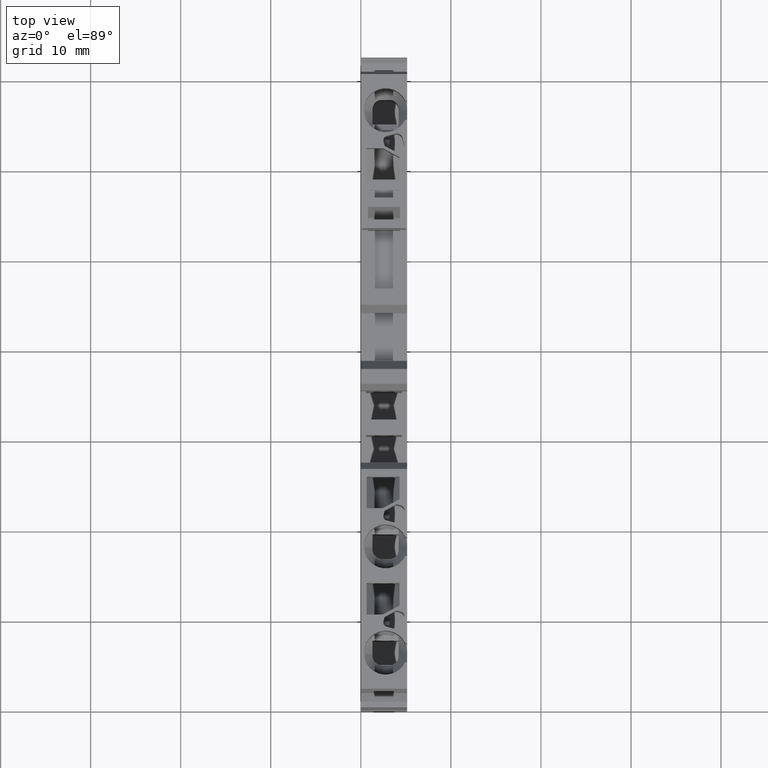
[diagram: clean part render]
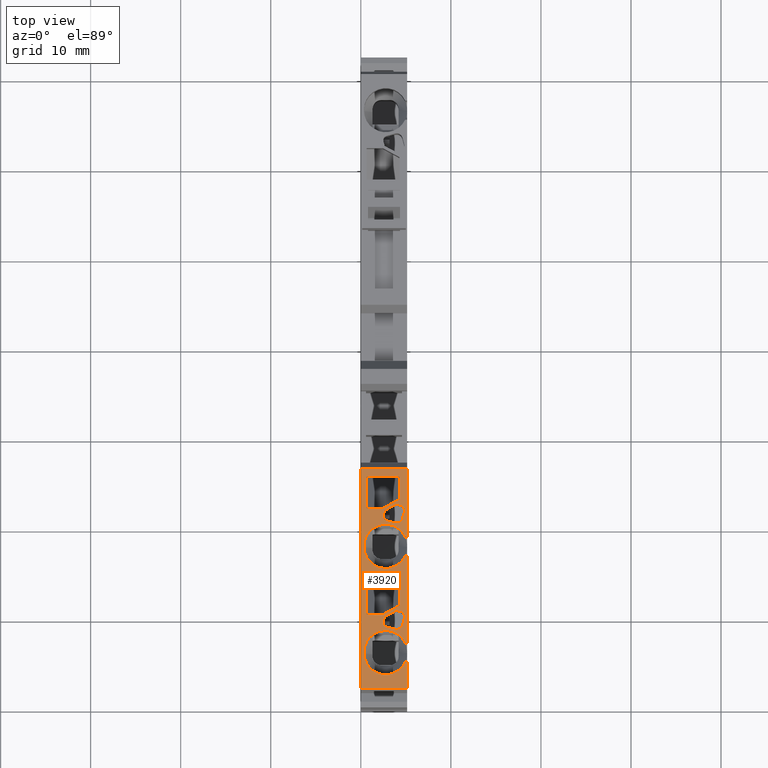
[diagram: same view with one face highlighted and labeled with its STEP entity id]
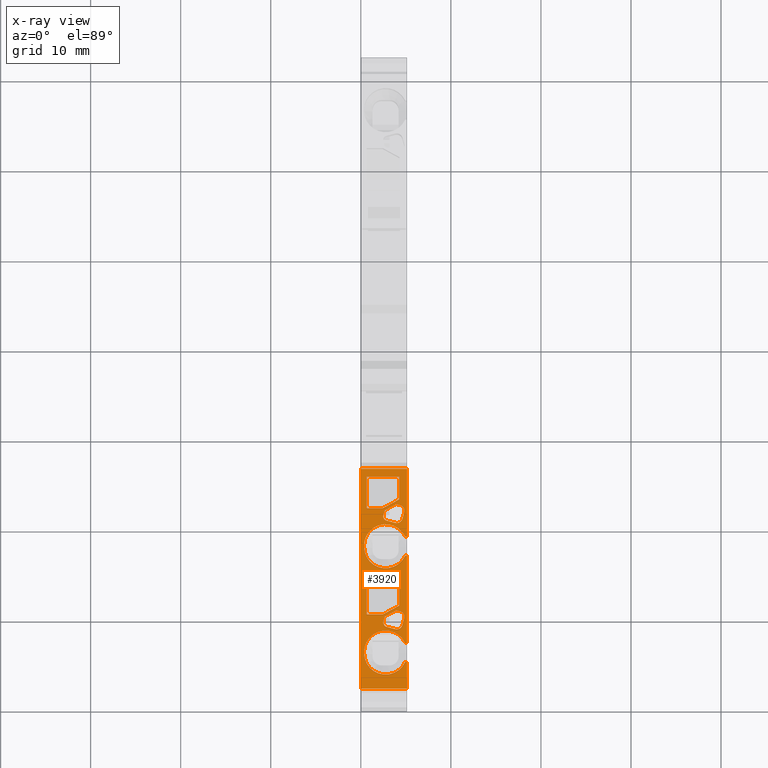
[diagram: x-ray of the same camera — body ghosted, the highlighted face saturated]
A machine part, top view. The second image highlights one B-rep face of the part: STEP entity #3920.
The next image is the same camera in x-ray: the body ghosted, the highlighted face saturated — about 0% of this face is hidden behind the body in this view.
In plain terms, the highlighted planar face has unit normal (-0, -0, 1).
Its self-contained STEP definition (entity closure, byte-faithful):
#60=CARTESIAN_POINT('',(-11.0462532908044,-9.15000000000289,53.67));
#70=DIRECTION('',(0.47559235530198,-5.99728600114702E-14,
0.879665795389542));
#80=VECTOR('',#70,1.);
#90=LINE('',#60,#80);
#100=CARTESIAN_POINT('',(-12.3994803998297,-9.15000000000271,
51.1670421876364));
#110=VERTEX_POINT('',#100);
#120=CARTESIAN_POINT('',(-11.7027836946682,-9.15000000000279,
52.4556673189256));
#130=VERTEX_POINT('',#120);
#140=EDGE_CURVE('',#110,#130,#90,.T.);
#480=CARTESIAN_POINT('',(-7.80010077832437,-9.15000000000329,
51.8563969999973));
#490=DIRECTION('',(1.2610745780961E-13,1.,-0.));
#500=DIRECTION('',(-1.,1.2610745780961E-13,0.));
#510=AXIS2_PLACEMENT_3D('',#480,#490,#500);
#520=PLANE('',#510);
#530=CARTESIAN_POINT('',(0.753746709195646,-9.15000000000438,53.67));
#540=DIRECTION('',(0.47559235530198,-5.99728600114702E-14,
0.879665795389542));
#550=VECTOR('',#540,1.);
#560=LINE('',#530,#550);
#570=CARTESIAN_POINT('',(-0.599480399829737,-9.1500000000042,
51.1670421876364));
#580=VERTEX_POINT('',#570);
#590=CARTESIAN_POINT('',(0.097216305331763,-9.15000000000428,
52.4556673189256));
#600=VERTEX_POINT('',#590);
#610=EDGE_CURVE('',#580,#600,#560,.T.);
#620=ORIENTED_EDGE('',*,*,#610,.T.);
#630=CARTESIAN_POINT('',(-30.6958559619297,-9.15000000000041,
43.1027426606679));
#640=DIRECTION('',(0.965925826289069,-1.21805343589187E-13,
0.258819045102521));
#650=VECTOR('',#640,1.);
#660=LINE('',#630,#650);
#670=CARTESIAN_POINT('',(-1.12448227247336,-9.15000000000413,
51.0263683598367));
#680=VERTEX_POINT('',#670);
#690=EDGE_CURVE('',#680,#580,#660,.T.);
#700=ORIENTED_EDGE('',*,*,#690,.T.);
#710=CARTESIAN_POINT('',(-1.25389179502463,-9.15000000000412,
51.5093312729812));
#720=DIRECTION('',(-1.2610745780961E-13,-1.,0.));
#730=DIRECTION('',(1.,-1.2610745780961E-13,0.));
#740=AXIS2_PLACEMENT_3D('',#710,#720,#730);
#750=CIRCLE('',#740,0.5);
#760=CARTESIAN_POINT('',(-1.73685470816915,-9.15000000000406,
51.37992175043));
#770=VERTEX_POINT('',#760);
#780=EDGE_CURVE('',#770,#680,#750,.T.);
#790=ORIENTED_EDGE('',*,*,#780,.T.);
#800=CARTESIAN_POINT('',(-2.35047932574552,-9.15000000000399,53.67));
#810=DIRECTION('',(0.25881904510252,-3.26266791361718E-14,
-0.965925826289069));
#820=VECTOR('',#810,1.);
#830=LINE('',#800,#820);
#840=CARTESIAN_POINT('',(-1.99049737236962,-9.15000000000402,
52.3265290601933));
#850=VERTEX_POINT('',#840);
#860=EDGE_CURVE('',#850,#770,#830,.T.);
#870=ORIENTED_EDGE('',*,*,#860,.T.);
#880=CARTESIAN_POINT('',(-1.34332706875595,-9.15000000000411,
52.499937820412));
#890=DIRECTION('',(1.2610745780961E-13,1.,0.));
#900=DIRECTION('',(1.,-1.2610745780961E-13,0.));
#910=AXIS2_PLACEMENT_3D('',#880,#890,#900);
#920=CIRCLE('',#910,0.67);
#930=CARTESIAN_POINT('',(-1.51673582897462,-9.15000000000408,
53.1471081240256));
#940=VERTEX_POINT('',#930);
#950=EDGE_CURVE('',#850,#940,#920,.T.);
#960=ORIENTED_EDGE('',*,*,#950,.F.);
#970=CARTESIAN_POINT('',(-30.6958559619297,-9.15000000000041,
45.3285864485496));
#980=DIRECTION('',(-0.965925826289069,1.21805343589187E-13,
-0.258819045102521));
#990=VECTOR('',#980,1.);
#1000=LINE('',#970,#990);
#1010=CARTESIAN_POINT('',(-0.763313684469182,-9.15000000000418,
53.3489869792056));
#1020=VERTEX_POINT('',#1010);
#1030=EDGE_CURVE('',#1020,#940,#1000,.T.);
#1040=ORIENTED_EDGE('',*,*,#1030,.T.);
#1050=CARTESIAN_POINT('',(-0.608022257407654,-9.15000000000421,
52.7694314834322));
#1060=DIRECTION('',(-1.2610745780961E-13,-1.,0.));
#1070=DIRECTION('',(1.,-1.2610745780961E-13,0.));
#1080=AXIS2_PLACEMENT_3D('',#1050,#1060,#1070);
#1090=CIRCLE('',#1080,0.6);
#1100=CARTESIAN_POINT('',(-0.0284667616341991,-9.15000000000427,
52.9247229104937));
#1110=VERTEX_POINT('',#1100);
#1120=EDGE_CURVE('',#1110,#1020,#1090,.T.);
#1130=ORIENTED_EDGE('',*,*,#1120,.T.);
#1140=CARTESIAN_POINT('',(-0.228163155904838,-9.15000000000426,53.67));
#1150=DIRECTION('',(-0.25881904510252,3.26197402422679E-14,
0.965925826289069));
#1160=VECTOR('',#1150,1.);
#1170=LINE('',#1140,#1160);
#1180=EDGE_CURVE('',#600,#1110,#1170,.T.);
#1190=ORIENTED_EDGE('',*,*,#1180,.T.);
#1200=EDGE_LOOP('',(#1190,#1130,#1040,#960,#870,#790,#700,#620));
#1210=FACE_BOUND('',#1200,.T.);
#1220=CARTESIAN_POINT('',(-13.0538917950246,-9.15000000000263,
51.5093312729812));
#1230=DIRECTION('',(-1.2610745780961E-13,-1.,0.));
#1240=DIRECTION('',(1.,-1.2610745780961E-13,0.));
#1250=AXIS2_PLACEMENT_3D('',#1220,#1230,#1240);
#1260=CIRCLE('',#1250,0.5);
#1270=CARTESIAN_POINT('',(-13.5368547081692,-9.15000000000257,
51.37992175043));
#1280=VERTEX_POINT('',#1270);
#1290=CARTESIAN_POINT('',(-12.9244822724734,-9.15000000000264,
51.0263683598367));
#1300=VERTEX_POINT('',#1290);
#1310=EDGE_CURVE('',#1280,#1300,#1260,.T.);
#1320=ORIENTED_EDGE('',*,*,#1310,.T.);
#1330=CARTESIAN_POINT('',(-14.1504793257455,-9.1500000000025,53.67));
#1340=DIRECTION('',(0.25881904510252,-3.26266791361718E-14,
-0.965925826289069));
#1350=VECTOR('',#1340,1.);
#1360=LINE('',#1330,#1350);
#1370=CARTESIAN_POINT('',(-13.7904973723696,-9.15000000000254,
52.3265290601933));
#1380=VERTEX_POINT('',#1370);
#1390=EDGE_CURVE('',#1380,#1280,#1360,.T.);
#1400=ORIENTED_EDGE('',*,*,#1390,.T.);
#1410=CARTESIAN_POINT('',(-13.1433270687559,-9.15000000000263,
52.499937820412));
#1420=DIRECTION('',(1.2610745780961E-13,1.,0.));
#1430=DIRECTION('',(1.,-1.2610745780961E-13,0.));
#1440=AXIS2_PLACEMENT_3D('',#1410,#1420,#1430);
#1450=CIRCLE('',#1440,0.67);
#1460=CARTESIAN_POINT('',(-13.3167358289746,-9.1500000000026,
53.1471081240256));
#1470=VERTEX_POINT('',#1460);
#1480=EDGE_CURVE('',#1380,#1470,#1450,.T.);
#1490=ORIENTED_EDGE('',*,*,#1480,.F.);
#1500=CARTESIAN_POINT('',(-30.6958559619297,-9.15000000000041,
48.4903869192369));
#1510=DIRECTION('',(-0.965925826289069,1.21805343589187E-13,
-0.258819045102521));
#1520=VECTOR('',#1510,1.);
#1530=LINE('',#1500,#1520);
#1540=CARTESIAN_POINT('',(-12.5633136844692,-9.15000000000269,
53.3489869792056));
#1550=VERTEX_POINT('',#1540);
#1560=EDGE_CURVE('',#1550,#1470,#1530,.T.);
#1570=ORIENTED_EDGE('',*,*,#1560,.T.);
#1580=CARTESIAN_POINT('',(-12.4080222574077,-9.15000000000272,
52.7694314834322));
#1590=DIRECTION('',(-1.2610745780961E-13,-1.,0.));
#1600=DIRECTION('',(1.,-1.2610745780961E-13,0.));
#1610=AXIS2_PLACEMENT_3D('',#1580,#1590,#1600);
#1620=CIRCLE('',#1610,0.6);
#1630=CARTESIAN_POINT('',(-11.8284667616342,-9.15000000000278,
52.9247229104937));
#1640=VERTEX_POINT('',#1630);
#1650=EDGE_CURVE('',#1640,#1550,#1620,.T.);
#1660=ORIENTED_EDGE('',*,*,#1650,.T.);
#1670=CARTESIAN_POINT('',(-12.0281631559048,-9.15000000000277,53.67));
#1680=DIRECTION('',(-0.25881904510252,3.26197402422679E-14,
0.965925826289069));
#1690=VECTOR('',#1680,1.);
#1700=LINE('',#1670,#1690);
#1710=EDGE_CURVE('',#130,#1640,#1700,.T.);
#1720=ORIENTED_EDGE('',*,*,#1710,.T.);
#1730=ORIENTED_EDGE('',*,*,#140,.T.);
#1740=CARTESIAN_POINT('',(-30.6958559619297,-9.15000000000041,
46.2645431313552));
#1750=DIRECTION('',(0.965925826289069,-1.21805343589187E-13,
0.258819045102521));
#1760=VECTOR('',#1750,1.);
#1770=LINE('',#1740,#1760);
#1780=EDGE_CURVE('',#1300,#110,#1770,.T.);
#1790=ORIENTED_EDGE('',*,*,#1780,.T.);
#1800=EDGE_LOOP('',(#1790,#1730,#1720,#1660,#1570,#1490,#1400,#1320));
#1810=FACE_BOUND('',#1800,.T.);
#1820=CARTESIAN_POINT('',(3.13216722169037,-9.15000000000467,53.67));
#1830=DIRECTION('',(8.61899005766604E-17,-1.0862244886344E-29,-1.));
#1840=VECTOR('',#1830,1.);
#1850=LINE('',#1820,#1840);
#1860=CARTESIAN_POINT('',(3.13216722169037,-9.15000000000467,
52.819999999999));
#1870=VERTEX_POINT('',#1860);
#1880=CARTESIAN_POINT('',(3.13216722169037,-9.15000000000467,
49.1699999999993));
#1890=VERTEX_POINT('',#1880);
#1900=EDGE_CURVE('',#1870,#1890,#1850,.T.);
#1910=ORIENTED_EDGE('',*,*,#1900,.F.);
#1920=CARTESIAN_POINT('',(-30.6958559619297,-9.1500000000004,
49.1699999999993));
#1930=DIRECTION('',(-1.,1.2610745780961E-13,-1.38777878078145E-16));
#1940=VECTOR('',#1930,1.);
#1950=LINE('',#1920,#1940);
#1960=CARTESIAN_POINT('',(-0.367832778309634,-9.15000000000423,
49.1699999999954));
#1970=VERTEX_POINT('',#1960);
#1980=EDGE_CURVE('',#1890,#1970,#1950,.T.);
#1990=ORIENTED_EDGE('',*,*,#1980,.F.);
#2000=CARTESIAN_POINT('',(-0.367832778309634,-9.15000000000423,53.67));
#2010=DIRECTION('',(-8.61899005766604E-17,1.0862244886344E-29,1.));
#2020=VECTOR('',#2010,1.);
#2030=LINE('',#2000,#2020);
#2040=CARTESIAN_POINT('',(-0.367832778309634,-9.15000000000423,
50.9656099235608));
#2050=VERTEX_POINT('',#2040);
#2060=EDGE_CURVE('',#1970,#2050,#2030,.T.);
#2070=ORIENTED_EDGE('',*,*,#2060,.F.);
#2080=CARTESIAN_POINT('',(1.09429892312755,-9.15000000000441,53.67));
#2090=DIRECTION('',(0.47559235530198,-6.00006155870858E-14,
0.879665795389542));
#2100=VECTOR('',#2090,1.);
#2110=LINE('',#2080,#2100);
#2120=CARTESIAN_POINT('',(0.634745415277287,-9.15000000000435,
52.819999999999));
#2130=VERTEX_POINT('',#2120);
#2140=EDGE_CURVE('',#2050,#2130,#2110,.T.);
#2150=ORIENTED_EDGE('',*,*,#2140,.F.);
#2160=CARTESIAN_POINT('',(-30.6958559619297,-9.1500000000004,
52.8199999999988));
#2170=DIRECTION('',(1.,-1.2610745780961E-13,8.13932254928318E-15));
#2180=VECTOR('',#2170,1.);
#2190=LINE('',#2160,#2180);
#2200=EDGE_CURVE('',#2130,#1870,#2190,.T.);
#2210=ORIENTED_EDGE('',*,*,#2200,.F.);
#2220=EDGE_LOOP('',(#2210,#2150,#2070,#1990,#1910));
#2230=FACE_BOUND('',#2220,.T.);
#2240=CARTESIAN_POINT('',(-8.66783308704509,-9.15000000000319,53.67));
#2250=DIRECTION('',(8.61899005766604E-17,-1.0862244886344E-29,-1.));
#2260=VECTOR('',#2250,1.);
#2270=LINE('',#2240,#2260);
#2280=CARTESIAN_POINT('',(-8.66783308704509,-9.15000000000319,
52.8200000000041));
#2290=VERTEX_POINT('',#2280);
#2300=CARTESIAN_POINT('',(-8.66783308704509,-9.15000000000319,
49.1700000000045));
#2310=VERTEX_POINT('',#2300);
#2320=EDGE_CURVE('',#2290,#2310,#2270,.T.);
#2330=ORIENTED_EDGE('',*,*,#2320,.F.);
#2340=CARTESIAN_POINT('',(-30.6958559619297,-9.1500000000004,
49.1700000000045));
#2350=DIRECTION('',(-1.,1.2610745780961E-13,-1.38777878078145E-16));
#2360=VECTOR('',#2350,1.);
#2370=LINE('',#2340,#2360);
#2380=CARTESIAN_POINT('',(-12.1678330870451,-9.15000000000274,
49.1700000000045));
#2390=VERTEX_POINT('',#2380);
#2400=EDGE_CURVE('',#2310,#2390,#2370,.T.);
#2410=ORIENTED_EDGE('',*,*,#2400,.F.);
#2420=CARTESIAN_POINT('',(-12.1678330870451,-9.15000000000274,53.67));
#2430=DIRECTION('',(-8.61899005766604E-17,1.0862244886344E-29,1.));
#2440=VECTOR('',#2430,1.);
#2450=LINE('',#2420,#2440);
#2460=CARTESIAN_POINT('',(-12.1678330870451,-9.15000000000274,
50.965609923566));
#2470=VERTEX_POINT('',#2460);
#2480=EDGE_CURVE('',#2390,#2470,#2450,.T.);
#2490=ORIENTED_EDGE('',*,*,#2480,.F.);
#2500=CARTESIAN_POINT('',(-10.7057013856107,-9.15000000000292,53.67));
#2510=DIRECTION('',(0.47559235530198,-6.00006155870858E-14,
0.879665795389542));
#2520=VECTOR('',#2510,1.);
#2530=LINE('',#2500,#2520);
#2540=CARTESIAN_POINT('',(-11.1652548934582,-9.15000000000286,
52.8200000000041));
#2550=VERTEX_POINT('',#2540);
#2560=EDGE_CURVE('',#2470,#2550,#2530,.T.);
#2570=ORIENTED_EDGE('',*,*,#2560,.F.);
#2580=CARTESIAN_POINT('',(-30.6958559619297,-9.1500000000004,
52.820000000004));
#2590=DIRECTION('',(1.,-1.2610745780961E-13,8.13932254928318E-15));
#2600=VECTOR('',#2590,1.);
#2610=LINE('',#2580,#2600);
#2620=EDGE_CURVE('',#2550,#2290,#2610,.T.);
#2630=ORIENTED_EDGE('',*,*,#2620,.F.);
#2640=EDGE_LOOP('',(#2630,#2570,#2490,#2410,#2330));
#2650=FACE_BOUND('',#2640,.T.);
#2660=CARTESIAN_POINT('',(-30.6958559619297,-9.1500000000004,
53.6699999999914));
#2670=DIRECTION('',(-1.,1.2610745780961E-13,-1.20466137065733E-13));
#2680=VECTOR('',#2670,1.);
#2690=LINE('',#2660,#2680);
#2700=CARTESIAN_POINT('',(4.01366750239472,-9.15000000000477,
53.6699999999956));
#2710=VERTEX_POINT('',#2700);
#2720=CARTESIAN_POINT('',(-3.54283277831067,-9.15000000000382,
53.6699999999947));
#2730=VERTEX_POINT('',#2720);
#2740=EDGE_CURVE('',#2710,#2730,#2690,.T.);
#2750=ORIENTED_EDGE('',*,*,#2740,.F.);
#2760=CARTESIAN_POINT('',(-3.54283277831068,-9.15000000000382,53.67));
#2770=DIRECTION('',(4.66977552505462E-17,-5.89180488586943E-30,1.));
#2780=VECTOR('',#2770,1.);
#2790=LINE('',#2760,#2780);
#2800=CARTESIAN_POINT('',(-3.54283277831068,-9.1500000000043,
53.4517424229247));
#2810=VERTEX_POINT('',#2800);
#2820=EDGE_CURVE('',#2810,#2730,#2790,.T.);
#2830=ORIENTED_EDGE('',*,*,#2820,.T.);
#2840=CARTESIAN_POINT('',(-4.54283277831065,-9.1500000000037,
51.2699999999976));
#2850=DIRECTION('',(6.00033911446474E-13,1.,5.07383066415006E-18));
#2860=DIRECTION('',(-1.,6.00033911446474E-13,-1.41881165854314E-17));
#2870=AXIS2_PLACEMENT_3D('',#2840,#2850,#2860);
#2880=CIRCLE('',#2870,2.4);
#2890=CARTESIAN_POINT('',(-4.54283277831063,-9.1500000000037,
48.8699999999976));
#2900=VERTEX_POINT('',#2890);
#2910=EDGE_CURVE('',#2810,#2900,#2880,.T.);
#2920=ORIENTED_EDGE('',*,*,#2910,.F.);
#2930=CARTESIAN_POINT('',(-30.6958559619297,-9.1500000000004,
48.8699999999976));
#2940=DIRECTION('',(1.,-1.2610745780961E-13,-7.28583859910259E-16));
#2950=VECTOR('',#2940,1.);
#2960=LINE('',#2930,#2950);
#2970=CARTESIAN_POINT('',(-4.64283277831036,-9.15000000000368,
48.8699999999976));
#2980=VERTEX_POINT('',#2970);
#2990=EDGE_CURVE('',#2980,#2900,#2960,.T.);
#3000=ORIENTED_EDGE('',*,*,#2990,.T.);
#3010=CARTESIAN_POINT('',(-4.64283277831038,-9.15000000000369,
51.2699999999976));
#3020=DIRECTION('',(-4.82766604470442E-13,-1.,-5.07383066414839E-18));
#3030=DIRECTION('',(-1.,4.82766604470442E-13,-1.4188116585432E-17));
#3040=AXIS2_PLACEMENT_3D('',#3010,#3020,#3030);
#3050=CIRCLE('',#3040,2.4);
#3060=CARTESIAN_POINT('',(-5.64283277831071,-9.15000000000321,
53.4517424229246));
#3070=VERTEX_POINT('',#3060);
#3080=EDGE_CURVE('',#3070,#2980,#3050,.T.);
#3090=ORIENTED_EDGE('',*,*,#3080,.T.);
#3100=CARTESIAN_POINT('',(-5.64283277831069,-9.15000000000356,53.67));
#3110=DIRECTION('',(-4.66977552505462E-17,5.89180488586943E-30,-1.));
#3120=VECTOR('',#3110,1.);
#3130=LINE('',#3100,#3120);
#3140=CARTESIAN_POINT('',(-5.64283277831069,-9.15000000000356,
53.6699999999945));
#3150=VERTEX_POINT('',#3140);
#3160=EDGE_CURVE('',#3150,#3070,#3130,.T.);
#3170=ORIENTED_EDGE('',*,*,#3160,.T.);
#3180=CARTESIAN_POINT('',(-15.3428330870473,-9.15000000000234,
53.6699999999933));
#3190=VERTEX_POINT('',#3180);
#3200=EDGE_CURVE('',#3150,#3190,#2690,.T.);
#3210=ORIENTED_EDGE('',*,*,#3200,.F.);
#3220=CARTESIAN_POINT('',(-15.3428330870473,-9.15000000000234,53.67));
#3230=DIRECTION('',(4.66977552505462E-17,-5.89180488586943E-30,1.));
#3240=VECTOR('',#3230,1.);
#3250=LINE('',#3220,#3240);
#3260=CARTESIAN_POINT('',(-15.3428330870473,-9.15000000000282,
53.4517424229313));
#3270=VERTEX_POINT('',#3260);
#3280=EDGE_CURVE('',#3270,#3190,#3250,.T.);
#3290=ORIENTED_EDGE('',*,*,#3280,.T.);
#3300=CARTESIAN_POINT('',(-16.3428330870473,-9.15000000000221,
51.2700000000042));
#3310=DIRECTION('',(6.00033911446474E-13,1.,5.07383066415006E-18));
#3320=DIRECTION('',(-1.,6.00033911446474E-13,-1.41881165854314E-17));
#3330=AXIS2_PLACEMENT_3D('',#3300,#3310,#3320);
#3340=CIRCLE('',#3330,2.4);
#3350=CARTESIAN_POINT('',(-16.3428330870472,-9.15000000000221,
48.8700000000042));
#3360=VERTEX_POINT('',#3350);
#3370=EDGE_CURVE('',#3270,#3360,#3340,.T.);
#3380=ORIENTED_EDGE('',*,*,#3370,.F.);
#3390=CARTESIAN_POINT('',(-30.6958559619297,-9.1500000000004,
48.8700000000042));
#3400=DIRECTION('',(1.,-1.2610745780961E-13,-7.28583859910259E-16));
#3410=VECTOR('',#3400,1.);
#3420=LINE('',#3390,#3410);
#3430=CARTESIAN_POINT('',(-16.442833087047,-9.1500000000022,
48.8700000000042));
#3440=VERTEX_POINT('',#3430);
#3450=EDGE_CURVE('',#3440,#3360,#3420,.T.);
#3460=ORIENTED_EDGE('',*,*,#3450,.T.);
#3470=CARTESIAN_POINT('',(-16.442833087047,-9.1500000000022,
51.2700000000042));
#3480=DIRECTION('',(-4.82766604470442E-13,-1.,-5.07383066414839E-18));
#3490=DIRECTION('',(-1.,4.82766604470442E-13,-1.4188116585432E-17));
#3500=AXIS2_PLACEMENT_3D('',#3470,#3480,#3490);
#3510=CIRCLE('',#3500,2.4);
#3520=CARTESIAN_POINT('',(-17.4428330870473,-9.15000000000207,
53.4517424229311));
#3530=VERTEX_POINT('',#3520);
#3540=EDGE_CURVE('',#3530,#3440,#3510,.T.);
#3550=ORIENTED_EDGE('',*,*,#3540,.T.);
#3560=CARTESIAN_POINT('',(-17.4428330870473,-9.15000000000207,53.67));
#3570=DIRECTION('',(-4.66977552505462E-17,5.89180488586943E-30,-1.));
#3580=VECTOR('',#3570,1.);
#3590=LINE('',#3560,#3580);
#3600=CARTESIAN_POINT('',(-17.4428330870473,-9.15000000000207,
53.669999999993));
#3610=VERTEX_POINT('',#3600);
#3620=EDGE_CURVE('',#3610,#3530,#3590,.T.);
#3630=ORIENTED_EDGE('',*,*,#3620,.T.);
#3640=CARTESIAN_POINT('',(-20.4076385489783,-9.1500000000017,
53.6699999999927));
#3650=VERTEX_POINT('',#3640);
#3660=EDGE_CURVE('',#3610,#3650,#2690,.T.);
#3670=ORIENTED_EDGE('',*,*,#3660,.F.);
#3680=CARTESIAN_POINT('',(-20.4076385489783,-9.1500000000017,53.67));
#3690=DIRECTION('',(0.,0.,1.));
#3700=VECTOR('',#3690,1.);
#3710=LINE('',#3680,#3700);
#3720=CARTESIAN_POINT('',(-20.4076385489783,-9.1500000000017,
48.5199999999973));
#3730=VERTEX_POINT('',#3720);
#3740=EDGE_CURVE('',#3730,#3650,#3710,.T.);
#3750=ORIENTED_EDGE('',*,*,#3740,.T.);
#3760=CARTESIAN_POINT('',(-30.6958559619297,-9.1500000000004,
48.5199999999973));
#3770=DIRECTION('',(-1.,1.2610745780961E-13,0.));
#3780=VECTOR('',#3770,1.);
#3790=LINE('',#3760,#3780);
#3800=CARTESIAN_POINT('',(4.01366750239472,-9.15000000000477,
48.5199999999973));
#3810=VERTEX_POINT('',#3800);
#3820=EDGE_CURVE('',#3810,#3730,#3790,.T.);
#3830=ORIENTED_EDGE('',*,*,#3820,.T.);
#3840=CARTESIAN_POINT('',(4.01366750239472,-9.15000000000477,53.67));
#3850=DIRECTION('',(0.,0.,1.));
#3860=VECTOR('',#3850,1.);
#3870=LINE('',#3840,#3860);
#3880=EDGE_CURVE('',#3810,#2710,#3870,.T.);
#3890=ORIENTED_EDGE('',*,*,#3880,.F.);
#3900=EDGE_LOOP('',(#3890,#3830,#3750,#3670,#3630,#3550,#3460,#3380,
#3290,#3210,#3170,#3090,#3000,#2920,#2830,#2750));
#3910=FACE_OUTER_BOUND('',#3900,.T.);
#3920=ADVANCED_FACE('',(#1210,#1810,#2230,#2650,#3910),#520,.T.);